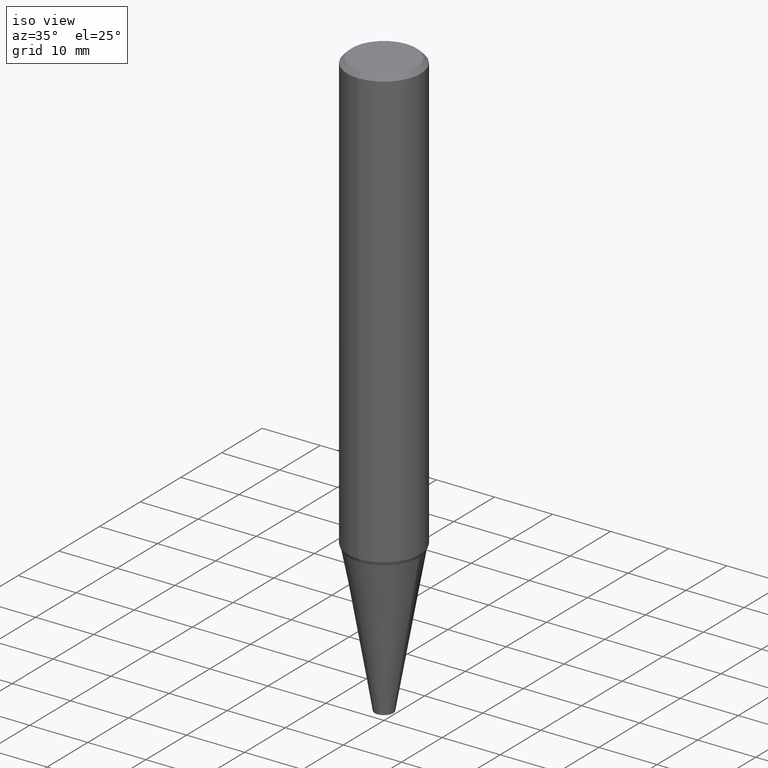
[diagram: clean part render]
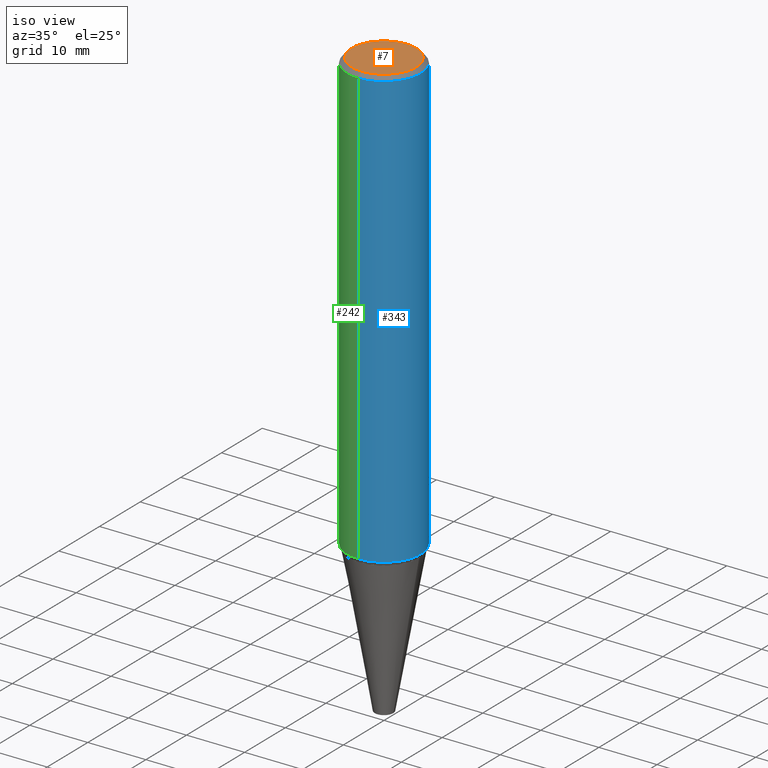
[diagram: same view with three faces highlighted in distinct colors, each labeled with its STEP entity id]
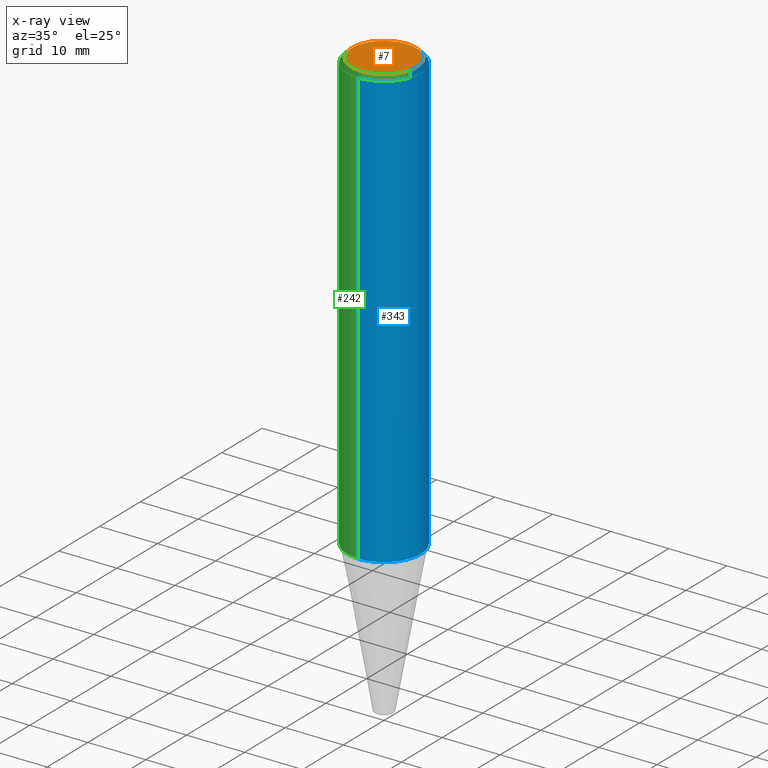
[diagram: x-ray of the same camera — body ghosted, the three highlighted faces saturated]
A machine part, iso view with three faces highlighted in distinct colors.
The next image is the same camera in x-ray (body ghosted, the three faces saturated) — at least one of them is partly hidden behind the body in this view.
Their STEP definitions:

[orange] entity #7 — the highlighted planar face has unit normal (0, -0, -1).
#7 = ADVANCED_FACE ( 'NONE', ( #79 ), #21, .F. ) ;
#21 = PLANE ( 'NONE',  #120 ) ;
#68 = AXIS2_PLACEMENT_3D ( 'NONE', #124, #99, #133 ) ;
#79 = FACE_OUTER_BOUND ( 'NONE', #266, .T. ) ;
#89 = AXIS2_PLACEMENT_3D ( 'NONE', #381, #219, #316 ) ;
#99 = DIRECTION ( 'NONE',  ( -2.575671795613833682E-29, 3.305023247287315229E-15, 1.000000000000000000 ) ) ;
#120 = AXIS2_PLACEMENT_3D ( 'NONE', #334, #232, #366 ) ;
#124 = CARTESIAN_POINT ( 'NONE',  ( -3.397982428467411198E-30, -4.866104238714463743E-16, 1.470268420365818581E-16 ) ) ;
#132 = EDGE_CURVE ( 'NONE', #148, #178, #185, .T. ) ;
#133 = DIRECTION ( 'NONE',  ( -6.982962677686265133E-15, -1.000000000000000000, 3.305023247287315229E-15 ) ) ;
#134 = ORIENTED_EDGE ( 'NONE', *, *, #132, .T. ) ;
#148 = VERTEX_POINT ( 'NONE', #184 ) ;
#163 = CARTESIAN_POINT ( 'NONE',  ( -1.607929218227708232E-15, -0.2187500000000007772, 8.700006773806830258E-16 ) ) ;
#178 = VERTEX_POINT ( 'NONE', #163 ) ;
#184 = CARTESIAN_POINT ( 'NONE',  ( 1.636631877582718366E-15, 0.2187499999999998057, -5.759469933075193097E-16 ) ) ;
#185 = CIRCLE ( 'NONE', #89, 0.2187500000000003053 ) ;
#219 = DIRECTION ( 'NONE',  ( -2.575671795613833682E-29, 3.305023247287315229E-15, 1.000000000000000000 ) ) ;
#232 = DIRECTION ( 'NONE',  ( 2.575671795613833682E-29, -3.305023247287315229E-15, -1.000000000000000000 ) ) ;
#266 = EDGE_LOOP ( 'NONE', ( #134, #401 ) ) ;
#274 = EDGE_CURVE ( 'NONE', #178, #148, #285, .T. ) ;
#285 = CIRCLE ( 'NONE', #68, 0.2187500000000003053 ) ;
#316 = DIRECTION ( 'NONE',  ( -6.982962677686265133E-15, -1.000000000000000000, 3.305023247287315229E-15 ) ) ;
#334 = CARTESIAN_POINT ( 'NONE',  ( 1.527523085743869265E-15, 0.2187499999999998057, -6.398984870593912875E-16 ) ) ;
#366 = DIRECTION ( 'NONE',  ( 6.982962677686265922E-15, 1.000000000000000000, -3.305023247287315229E-15 ) ) ;
#381 = CARTESIAN_POINT ( 'NONE',  ( -3.397982428467411198E-30, -4.866104238714463743E-16, 1.470268420365818581E-16 ) ) ;
#401 = ORIENTED_EDGE ( 'NONE', *, *, #274, .T. ) ;

[blue] entity #343 — the highlighted cylindrical surface (partial cylindrical patch) has radius 6.35 mm, axis along (-0, 0, 1).
#24 = DIRECTION ( 'NONE',  ( -2.575671795613833682E-29, 3.305023247287315229E-15, 1.000000000000000000 ) ) ;
#29 = DIRECTION ( 'NONE',  ( -6.982962677686265133E-15, -1.000000000000000000, 3.305023247287315229E-15 ) ) ;
#49 = VERTEX_POINT ( 'NONE', #369 ) ;
#59 = DIRECTION ( 'NONE',  ( -2.575671795613833682E-29, 3.305023247287315229E-15, 1.000000000000000000 ) ) ;
#85 = CARTESIAN_POINT ( 'NONE',  ( 7.325502458083445516E-29, -1.032248976888885970E-14, -2.976039382806299205 ) ) ;
#87 = EDGE_CURVE ( 'NONE', #197, #362, #385, .T. ) ;
#90 = CARTESIAN_POINT ( 'NONE',  ( 1.745740669421567269E-15, 0.2499999999999998890, -0.03125000000000092981 ) ) ;
#95 = LINE ( 'NONE', #288, #209 ) ;
#98 = CARTESIAN_POINT ( 'NONE',  ( 1.776356839400285963E-15, 0.2499999999999896194, -2.976039382806300537 ) ) ;
#118 = AXIS2_PLACEMENT_3D ( 'NONE', #281, #311, #29 ) ;
#123 = CARTESIAN_POINT ( 'NONE',  ( -2.593084992338081866E-30, -5.898924003491758380E-16, -0.03125000000000010408 ) ) ;
#150 = DIRECTION ( 'NONE',  ( -6.982962677686265922E-15, -1.000000000000000000, 4.370956789862822727E-15 ) ) ;
#151 = EDGE_CURVE ( 'NONE', #49, #362, #233, .T. ) ;
#156 = CARTESIAN_POINT ( 'NONE',  ( -1.745740669421492722E-15, -0.2500000000000102141, -2.976039382806298317 ) ) ;
#159 = ORIENTED_EDGE ( 'NONE', *, *, #151, .F. ) ;
#161 = CIRCLE ( 'NONE', #342, 0.2499999999999999167 ) ;
#164 = DIRECTION ( 'NONE',  ( -2.575671795613833682E-29, 3.305023247287315229E-15, 1.000000000000000000 ) ) ;
#165 = ORIENTED_EDGE ( 'NONE', *, *, #87, .T. ) ;
#197 = VERTEX_POINT ( 'NONE', #98 ) ;
#205 = ORIENTED_EDGE ( 'NONE', *, *, #210, .T. ) ;
#209 = VECTOR ( 'NONE', #164, 39.37007874015748143 ) ;
#210 = EDGE_CURVE ( 'NONE', #257, #197, #161, .T. ) ;
#223 = FACE_OUTER_BOUND ( 'NONE', #291, .T. ) ;
#224 = AXIS2_PLACEMENT_3D ( 'NONE', #123, #352, #354 ) ;
#233 = CIRCLE ( 'NONE', #224, 0.2500000000000004996 ) ;
#257 = VERTEX_POINT ( 'NONE', #156 ) ;
#264 = EDGE_CURVE ( 'NONE', #257, #49, #95, .T. ) ;
#281 = CARTESIAN_POINT ( 'NONE',  ( -3.397982428467408395E-30, -4.866104238714468673E-16, 1.912385453283800096E-17 ) ) ;
#288 = CARTESIAN_POINT ( 'NONE',  ( -1.745740669421571411E-15, -0.2500000000000006661, 8.453796663546674491E-16 ) ) ;
#291 = EDGE_LOOP ( 'NONE', ( #205, #165, #159, #338 ) ) ;
#308 = VECTOR ( 'NONE', #59, 39.37007874015748143 ) ;
#311 = DIRECTION ( 'NONE',  ( -2.575671795613833682E-29, 3.305023247287315229E-15, 1.000000000000000000 ) ) ;
#322 = CARTESIAN_POINT ( 'NONE',  ( 1.776356839400248295E-15, 0.2499999999999997224, -8.071319572889914472E-16 ) ) ;
#338 = ORIENTED_EDGE ( 'NONE', *, *, #264, .F. ) ;
#342 = AXIS2_PLACEMENT_3D ( 'NONE', #85, #24, #150 ) ;
#343 = ADVANCED_FACE ( 'NONE', ( #223 ), #346, .T. ) ;
#346 = CYLINDRICAL_SURFACE ( 'NONE', #118, 0.2500000000000002220 ) ;
#352 = DIRECTION ( 'NONE',  ( -2.575671795613833682E-29, 3.305023247287315229E-15, 1.000000000000000000 ) ) ;
#354 = DIRECTION ( 'NONE',  ( -6.982962677686265133E-15, -1.000000000000000000, 3.312365692317912570E-15 ) ) ;
#362 = VERTEX_POINT ( 'NONE', #90 ) ;
#369 = CARTESIAN_POINT ( 'NONE',  ( -1.715124499442888610E-15, -0.2500000000000010547, -0.03124999999999927489 ) ) ;
#385 = LINE ( 'NONE', #322, #308 ) ;

[green] entity #242 — the highlighted cylindrical surface (partial cylindrical patch) has radius 6.35 mm, axis along (-0, 0, 1).
#31 = DIRECTION ( 'NONE',  ( -6.982962677686265133E-15, -1.000000000000000000, 3.312365692317912570E-15 ) ) ;
#49 = VERTEX_POINT ( 'NONE', #369 ) ;
#51 = ORIENTED_EDGE ( 'NONE', *, *, #264, .T. ) ;
#54 = DIRECTION ( 'NONE',  ( -2.575671795613833682E-29, 3.305023247287315229E-15, 1.000000000000000000 ) ) ;
#59 = DIRECTION ( 'NONE',  ( -2.575671795613833682E-29, 3.305023247287315229E-15, 1.000000000000000000 ) ) ;
#61 = CIRCLE ( 'NONE', #347, 0.2500000000000004996 ) ;
#62 = DIRECTION ( 'NONE',  ( -2.575671795613833682E-29, 3.305023247287315229E-15, 1.000000000000000000 ) ) ;
#63 = CARTESIAN_POINT ( 'NONE',  ( -2.593084992338081866E-30, -5.898924003491758380E-16, -0.03125000000000010408 ) ) ;
#86 = EDGE_CURVE ( 'NONE', #197, #257, #200, .T. ) ;
#87 = EDGE_CURVE ( 'NONE', #197, #362, #385, .T. ) ;
#90 = CARTESIAN_POINT ( 'NONE',  ( 1.745740669421567269E-15, 0.2499999999999998890, -0.03125000000000092981 ) ) ;
#95 = LINE ( 'NONE', #288, #209 ) ;
#98 = CARTESIAN_POINT ( 'NONE',  ( 1.776356839400285963E-15, 0.2499999999999896194, -2.976039382806300537 ) ) ;
#106 = ORIENTED_EDGE ( 'NONE', *, *, #86, .T. ) ;
#108 = EDGE_LOOP ( 'NONE', ( #387, #106, #51, #403 ) ) ;
#154 = FACE_OUTER_BOUND ( 'NONE', #108, .T. ) ;
#156 = CARTESIAN_POINT ( 'NONE',  ( -1.745740669421492722E-15, -0.2500000000000102141, -2.976039382806298317 ) ) ;
#164 = DIRECTION ( 'NONE',  ( -2.575671795613833682E-29, 3.305023247287315229E-15, 1.000000000000000000 ) ) ;
#180 = DIRECTION ( 'NONE',  ( -6.982962677686265922E-15, -1.000000000000000000, 4.370956789862822727E-15 ) ) ;
#181 = AXIS2_PLACEMENT_3D ( 'NONE', #388, #54, #180 ) ;
#197 = VERTEX_POINT ( 'NONE', #98 ) ;
#200 = CIRCLE ( 'NONE', #181, 0.2499999999999999167 ) ;
#209 = VECTOR ( 'NONE', #164, 39.37007874015748143 ) ;
#242 = ADVANCED_FACE ( 'NONE', ( #154 ), #280, .T. ) ;
#257 = VERTEX_POINT ( 'NONE', #156 ) ;
#264 = EDGE_CURVE ( 'NONE', #257, #49, #95, .T. ) ;
#277 = AXIS2_PLACEMENT_3D ( 'NONE', #411, #62, #348 ) ;
#280 = CYLINDRICAL_SURFACE ( 'NONE', #277, 0.2500000000000002220 ) ;
#288 = CARTESIAN_POINT ( 'NONE',  ( -1.745740669421571411E-15, -0.2500000000000006661, 8.453796663546674491E-16 ) ) ;
#308 = VECTOR ( 'NONE', #59, 39.37007874015748143 ) ;
#322 = CARTESIAN_POINT ( 'NONE',  ( 1.776356839400248295E-15, 0.2499999999999997224, -8.071319572889914472E-16 ) ) ;
#347 = AXIS2_PLACEMENT_3D ( 'NONE', #63, #353, #31 ) ;
#348 = DIRECTION ( 'NONE',  ( -6.982962677686265133E-15, -1.000000000000000000, 3.305023247287315229E-15 ) ) ;
#350 = EDGE_CURVE ( 'NONE', #362, #49, #61, .T. ) ;
#353 = DIRECTION ( 'NONE',  ( -2.575671795613833682E-29, 3.305023247287315229E-15, 1.000000000000000000 ) ) ;
#362 = VERTEX_POINT ( 'NONE', #90 ) ;
#369 = CARTESIAN_POINT ( 'NONE',  ( -1.715124499442888610E-15, -0.2500000000000010547, -0.03124999999999927489 ) ) ;
#385 = LINE ( 'NONE', #322, #308 ) ;
#387 = ORIENTED_EDGE ( 'NONE', *, *, #87, .F. ) ;
#388 = CARTESIAN_POINT ( 'NONE',  ( 7.325502458083445516E-29, -1.032248976888885970E-14, -2.976039382806299205 ) ) ;
#403 = ORIENTED_EDGE ( 'NONE', *, *, #350, .F. ) ;
#411 = CARTESIAN_POINT ( 'NONE',  ( -3.397982428467408395E-30, -4.866104238714468673E-16, 1.912385453283800096E-17 ) ) ;